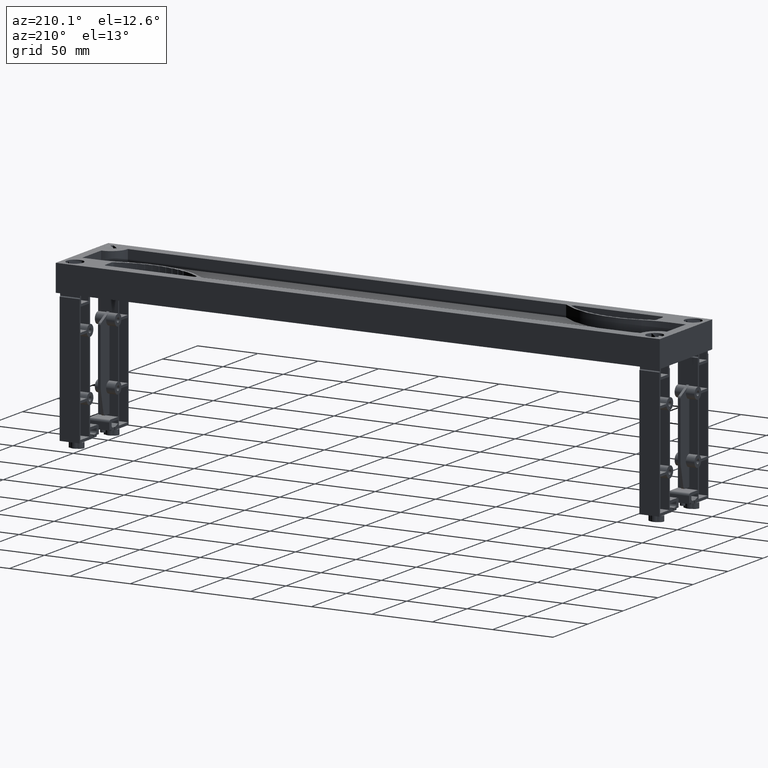
[diagram: clean part render]
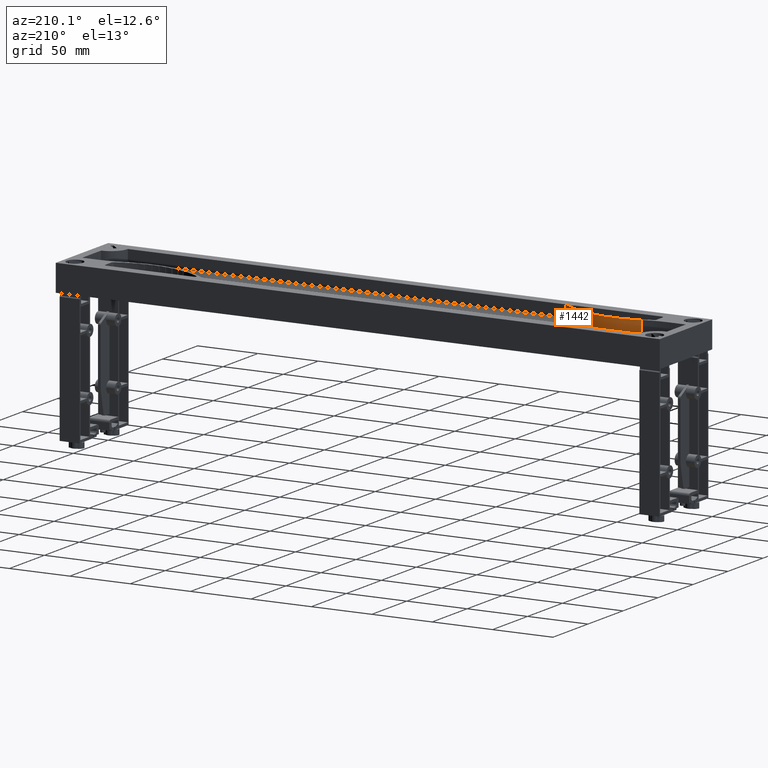
[diagram: same view with one face highlighted and labeled with its STEP entity id]
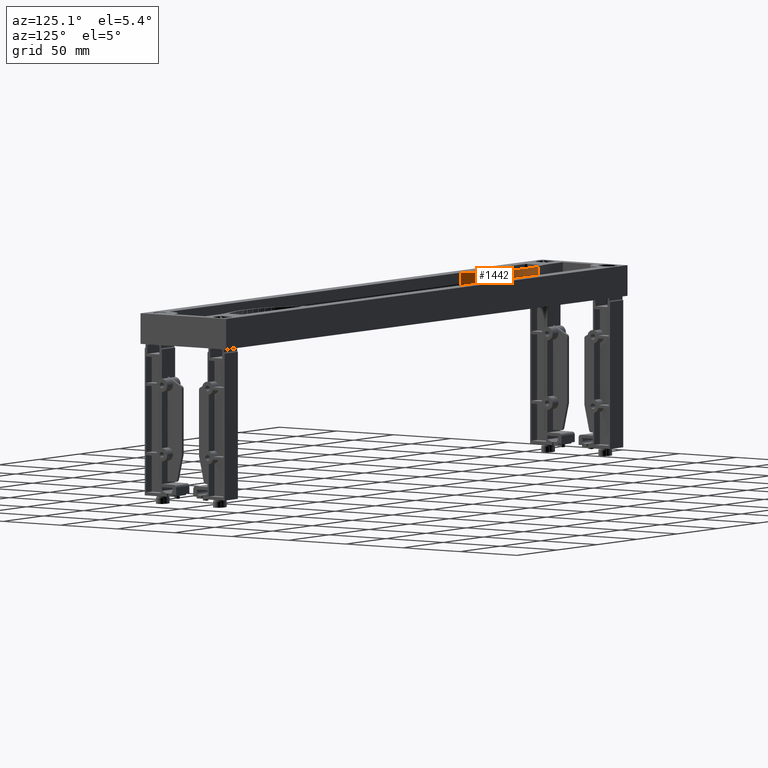
[diagram: same view with one face highlighted and labeled with its STEP entity id]
A machine part, auxiliary view. The second image highlights one B-rep face of the part: STEP entity #1442.
A second angle (auxiliary view) of the same face is appended — the face is thin or edge-on in the first view.
In plain terms, the highlighted cylindrical surface (partial cylindrical patch) has radius 75.6272 mm, axis along (0, 0, 1).
Its self-contained STEP definition (entity closure, byte-faithful):
#1442=ADVANCED_FACE('',(#3465),#3466,.T.);
#3465=FACE_OUTER_BOUND('',#6210,.T.);
#3466=CYLINDRICAL_SURFACE('',#6211,75.6272389424002);
#6210=EDGE_LOOP('',(#9859,#9860,#9861,#9862));
#6211=AXIS2_PLACEMENT_3D('',#9863,#9864,#9865);
#9859=ORIENTED_EDGE('',*,*,#17341,.F.);
#9860=ORIENTED_EDGE('',*,*,#17345,.F.);
#9861=ORIENTED_EDGE('',*,*,#17346,.F.);
#9862=ORIENTED_EDGE('',*,*,#17347,.F.);
#9863=CARTESIAN_POINT('',(63.9223504668,-45.5885053622003,136.8));
#9864=DIRECTION('',(0.0,-0.0,1.0));
#9865=DIRECTION('',(0.678031490376287,0.73503285508752,0.0));
#17341=EDGE_CURVE('',#20907,#20909,#20910,.T.);
#17345=EDGE_CURVE('',#20915,#20907,#20916,.T.);
#17346=EDGE_CURVE('',#20917,#20915,#20918,.T.);
#17347=EDGE_CURVE('',#20909,#20917,#20919,.T.);
#20907=VERTEX_POINT('',#26044);
#20909=VERTEX_POINT('',#26046);
#20910=CIRCLE('',#26047,75.6272389424002);
#20915=VERTEX_POINT('',#26053);
#20916=LINE('',#26054,#26055);
#20917=VERTEX_POINT('',#26056);
#20918=CIRCLE('',#26057,75.6272389424002);
#20919=LINE('',#26058,#26059);
#26044=CARTESIAN_POINT('',(42.700000000054,26.9999999999895,127.3));
#26046=CARTESIAN_POINT('',(115.199999999959,10.0000000000183,127.3));
#26047=AXIS2_PLACEMENT_3D('',#32553,#32554,#32555);
#26053=CARTESIAN_POINT('',(42.700000000054,26.9999999999895,136.8));
#26054=CARTESIAN_POINT('',(42.700000000054,26.9999999999895,136.8));
#26055=VECTOR('',#32560,1.0);
#26056=CARTESIAN_POINT('',(115.199999999959,10.0000000000183,136.8));
#26057=AXIS2_PLACEMENT_3D('',#32561,#32562,#32563);
#26058=CARTESIAN_POINT('',(115.199999999979,10.0,132.05));
#26059=VECTOR('',#32564,1.0);
#32553=CARTESIAN_POINT('',(63.9223504668,-45.5885053622003,127.3));
#32554=DIRECTION('',(0.0,0.0,-1.0));
#32555=DIRECTION('',(0.678031490376287,0.73503285508752,0.0));
#32560=DIRECTION('',(0.0,0.0,-1.0));
#32561=CARTESIAN_POINT('',(63.9223504668,-45.5885053622003,136.8));
#32562=DIRECTION('',(0.0,-0.0,1.0));
#32563=DIRECTION('',(0.678031490376287,0.73503285508752,0.0));
#32564=DIRECTION('',(0.0,-0.0,1.0));